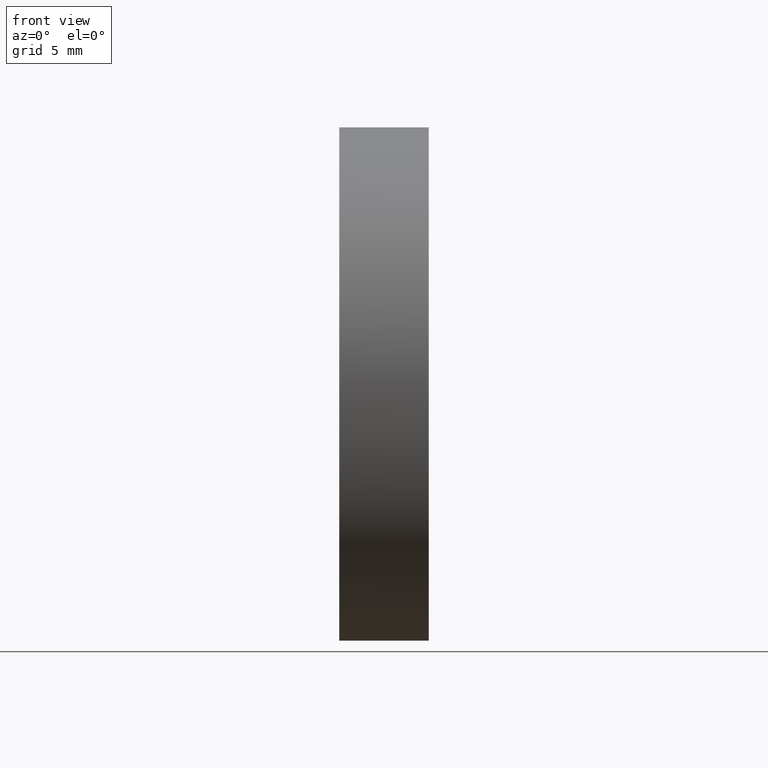
[diagram: clean part render]
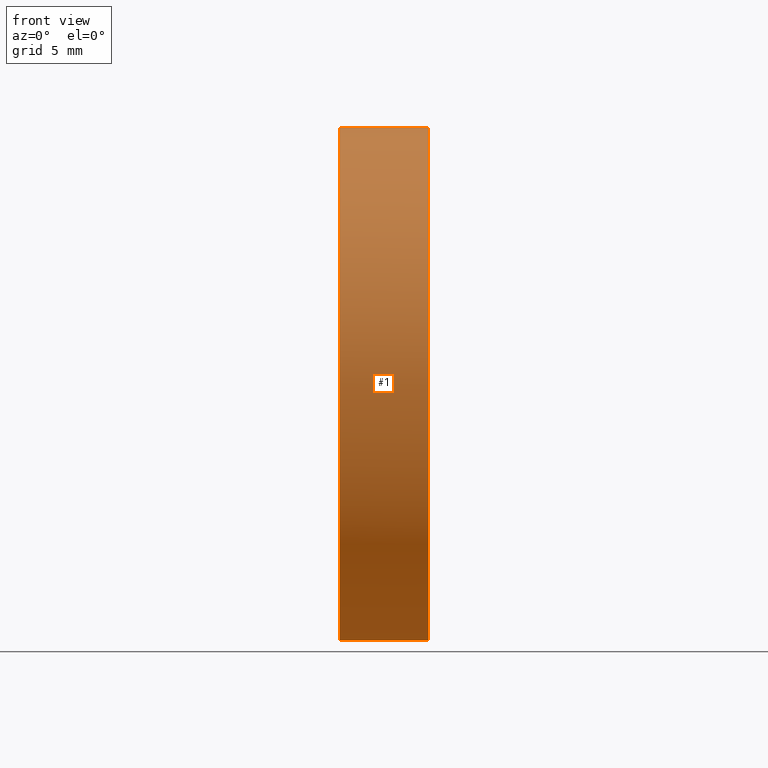
[diagram: same view with one face highlighted and labeled with its STEP entity id]
A machine part, front view. The second image highlights one B-rep face of the part: STEP entity #1.
In plain terms, the highlighted cylindrical surface (partial cylindrical patch) has radius 12.7 mm, axis along (-1, -0, -0).
Its self-contained STEP definition (entity closure, byte-faithful):
#1 = ADVANCED_FACE ( 'NONE', ( #50 ), #66, .T. ) ;
#7 = VERTEX_POINT ( 'NONE', #57 ) ;
#10 = LINE ( 'NONE', #165, #155 ) ;
#11 = DIRECTION ( 'NONE',  ( 0.0000000000000000000, 0.0000000000000000000, 1.000000000000000000 ) ) ;
#14 = DIRECTION ( 'NONE',  ( -1.000000000000000000, -0.0000000000000000000, -0.0000000000000000000 ) ) ;
#15 = VERTEX_POINT ( 'NONE', #159 ) ;
#22 = CIRCLE ( 'NONE', #131, 12.70000000000000300 ) ;
#24 = EDGE_CURVE ( 'NONE', #15, #132, #129, .T. ) ;
#26 = CARTESIAN_POINT ( 'NONE',  ( 111.9552297575605700, 71.19398908659370300, -12.70000000000000300 ) ) ;
#28 = EDGE_CURVE ( 'NONE', #7, #118, #22, .T. ) ;
#30 = CARTESIAN_POINT ( 'NONE',  ( 123.7938616566546800, 71.19398908659370300, 12.70000000000000300 ) ) ;
#31 = DIRECTION ( 'NONE',  ( -1.000000000000000000, -0.0000000000000000000, -0.0000000000000000000 ) ) ;
#33 = CIRCLE ( 'NONE', #173, 12.70000000000000300 ) ;
#35 = CARTESIAN_POINT ( 'NONE',  ( 111.9552297575605700, 71.19398908659370300, 0.0000000000000000000 ) ) ;
#47 = AXIS2_PLACEMENT_3D ( 'NONE', #35, #74, #146 ) ;
#50 = FACE_OUTER_BOUND ( 'NONE', #60, .T. ) ;
#57 = CARTESIAN_POINT ( 'NONE',  ( 123.7938616566546800, 71.19398908659370300, -12.70000000000000300 ) ) ;
#59 = EDGE_CURVE ( 'NONE', #118, #163, #33, .T. ) ;
#60 = EDGE_LOOP ( 'NONE', ( #106, #115, #143, #98, #121 ) ) ;
#66 = CYLINDRICAL_SURFACE ( 'NONE', #47, 12.70000000000000300 ) ;
#72 = CARTESIAN_POINT ( 'NONE',  ( 119.3629307920347200, 71.19398908659370300, 0.0000000000000000000 ) ) ;
#73 = AXIS2_PLACEMENT_3D ( 'NONE', #72, #99, #145 ) ;
#74 = DIRECTION ( 'NONE',  ( -1.000000000000000000, -0.0000000000000000000, -0.0000000000000000000 ) ) ;
#88 = DIRECTION ( 'NONE',  ( -1.000000000000000000, -0.0000000000000000000, -0.0000000000000000000 ) ) ;
#93 = DIRECTION ( 'NONE',  ( -1.000000000000000000, -0.0000000000000000000, -0.0000000000000000000 ) ) ;
#98 = ORIENTED_EDGE ( 'NONE', *, *, #168, .T. ) ;
#99 = DIRECTION ( 'NONE',  ( -1.000000000000000000, -0.0000000000000000000, -0.0000000000000000000 ) ) ;
#106 = ORIENTED_EDGE ( 'NONE', *, *, #150, .F. ) ;
#110 = CARTESIAN_POINT ( 'NONE',  ( 119.3629307920347200, 71.19398908659370300, 12.70000000000000300 ) ) ;
#113 = VECTOR ( 'NONE', #14, 1000.000000000000000 ) ;
#115 = ORIENTED_EDGE ( 'NONE', *, *, #28, .T. ) ;
#118 = VERTEX_POINT ( 'NONE', #169 ) ;
#121 = ORIENTED_EDGE ( 'NONE', *, *, #24, .F. ) ;
#129 = CIRCLE ( 'NONE', #73, 12.70000000000000300 ) ;
#131 = AXIS2_PLACEMENT_3D ( 'NONE', #176, #88, #157 ) ;
#132 = VERTEX_POINT ( 'NONE', #110 ) ;
#143 = ORIENTED_EDGE ( 'NONE', *, *, #59, .T. ) ;
#145 = DIRECTION ( 'NONE',  ( 0.0000000000000000000, 0.0000000000000000000, 1.000000000000000000 ) ) ;
#146 = DIRECTION ( 'NONE',  ( 0.0000000000000000000, 0.0000000000000000000, 1.000000000000000000 ) ) ;
#150 = EDGE_CURVE ( 'NONE', #7, #15, #151, .T. ) ;
#151 = LINE ( 'NONE', #26, #113 ) ;
#155 = VECTOR ( 'NONE', #93, 1000.000000000000000 ) ;
#157 = DIRECTION ( 'NONE',  ( 0.0000000000000000000, 0.0000000000000000000, 1.000000000000000000 ) ) ;
#158 = CARTESIAN_POINT ( 'NONE',  ( 123.7938616566546800, 71.19398908659370300, 0.0000000000000000000 ) ) ;
#159 = CARTESIAN_POINT ( 'NONE',  ( 119.3629307920347200, 71.19398908659370300, -12.70000000000000300 ) ) ;
#163 = VERTEX_POINT ( 'NONE', #30 ) ;
#165 = CARTESIAN_POINT ( 'NONE',  ( 111.9552297575605700, 71.19398908659370300, 12.70000000000000300 ) ) ;
#168 = EDGE_CURVE ( 'NONE', #163, #132, #10, .T. ) ;
#169 = CARTESIAN_POINT ( 'NONE',  ( 123.7938616566546800, 58.49398908659371400, 0.0000000000000000000 ) ) ;
#173 = AXIS2_PLACEMENT_3D ( 'NONE', #158, #31, #11 ) ;
#176 = CARTESIAN_POINT ( 'NONE',  ( 123.7938616566546800, 71.19398908659370300, 0.0000000000000000000 ) ) ;